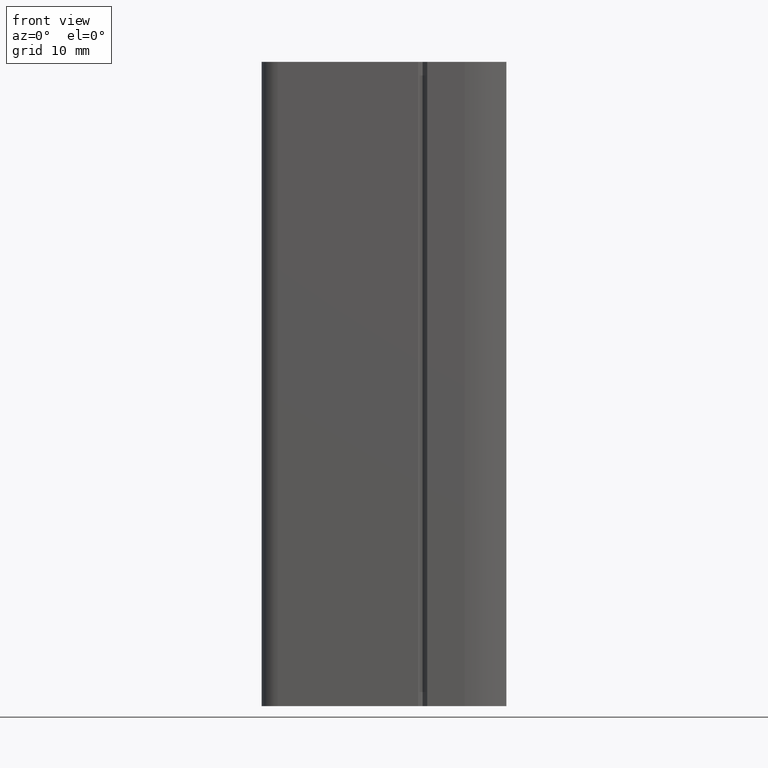
[diagram: clean part render]
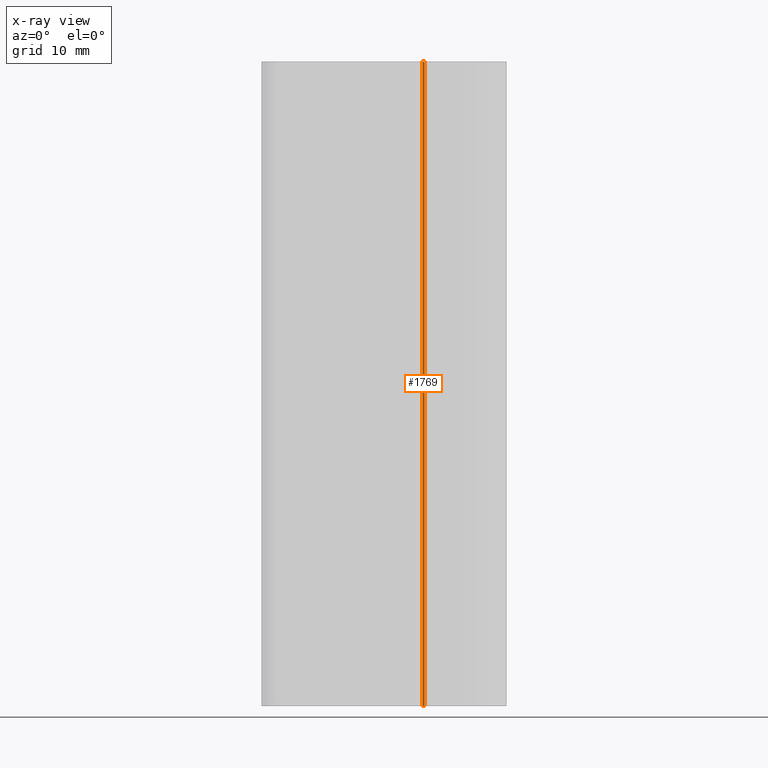
[diagram: x-ray — body ghosted, one internal face saturated and labeled with its STEP entity id]
A machine part, front view, then the same camera in x-ray: the body is ghosted and one INTERNAL B-rep face — a face not visible from any outside direction — is saturated and labeled: STEP entity #1769.
In plain terms, the highlighted cylindrical surface (edge-blend (fillet) strip) has radius 0.3 mm, axis along (0, 0, -1).
Its self-contained STEP definition (entity closure, byte-faithful):
#1711=CARTESIAN_POINT('',(-38.096446609505847,5.999999999034344,0.0));
#1712=VERTEX_POINT('',#1711);
#1719=CARTESIAN_POINT('',(-38.096446609505847,5.999999999034344,100.0));
#1720=VERTEX_POINT('',#1719);
#1721=CARTESIAN_POINT('',(-38.096446609505847,5.999999999034344,0.0));
#1722=DIRECTION('',(0.0,0.0,1.0));
#1723=VECTOR('',#1722,100.0);
#1724=LINE('',#1721,#1723);
#1725=EDGE_CURVE('',#1712,#1720,#1724,.T.);
#1737=CARTESIAN_POINT('',(-38.096446609505847,6.299999999004285,0.0));
#1738=DIRECTION('',(0.0,0.0,-1.0));
#1739=DIRECTION('',(-6.123234E-017,-1.0,0.0));
#1740=AXIS2_PLACEMENT_3D('',#1737,#1738,#1739);
#1741=CYLINDRICAL_SURFACE('',#1740,0.299999999969941);
#1742=CARTESIAN_POINT('',(-38.396446609475788,6.299999999004285,0.0));
#1743=VERTEX_POINT('',#1742);
#1744=CARTESIAN_POINT('',(-38.096446609505847,6.299999999004285,0.0));
#1745=DIRECTION('',(0.0,0.0,-1.0));
#1746=DIRECTION('',(-1.0,0.0,0.0));
#1747=AXIS2_PLACEMENT_3D('',#1744,#1745,#1746);
#1748=CIRCLE('',#1747,0.299999999969941);
#1749=EDGE_CURVE('',#1712,#1743,#1748,.T.);
#1750=ORIENTED_EDGE('',*,*,#1749,.T.);
#1751=CARTESIAN_POINT('',(-38.396446609475788,6.299999999004285,100.0));
#1752=VERTEX_POINT('',#1751);
#1753=CARTESIAN_POINT('',(-38.396446609475788,6.299999999004285,0.0));
#1754=DIRECTION('',(0.0,0.0,1.0));
#1755=VECTOR('',#1754,100.0);
#1756=LINE('',#1753,#1755);
#1757=EDGE_CURVE('',#1743,#1752,#1756,.T.);
#1758=ORIENTED_EDGE('',*,*,#1757,.T.);
#1759=CARTESIAN_POINT('',(-38.096446609505847,6.299999999004285,100.0));
#1760=DIRECTION('',(0.0,0.0,-1.0));
#1761=DIRECTION('',(-1.0,0.0,0.0));
#1762=AXIS2_PLACEMENT_3D('',#1759,#1760,#1761);
#1763=CIRCLE('',#1762,0.299999999969941);
#1764=EDGE_CURVE('',#1720,#1752,#1763,.T.);
#1765=ORIENTED_EDGE('',*,*,#1764,.F.);
#1766=ORIENTED_EDGE('',*,*,#1725,.F.);
#1767=EDGE_LOOP('',(#1750,#1758,#1765,#1766));
#1768=FACE_OUTER_BOUND('',#1767,.T.);
#1769=ADVANCED_FACE('',(#1768),#1741,.F.);